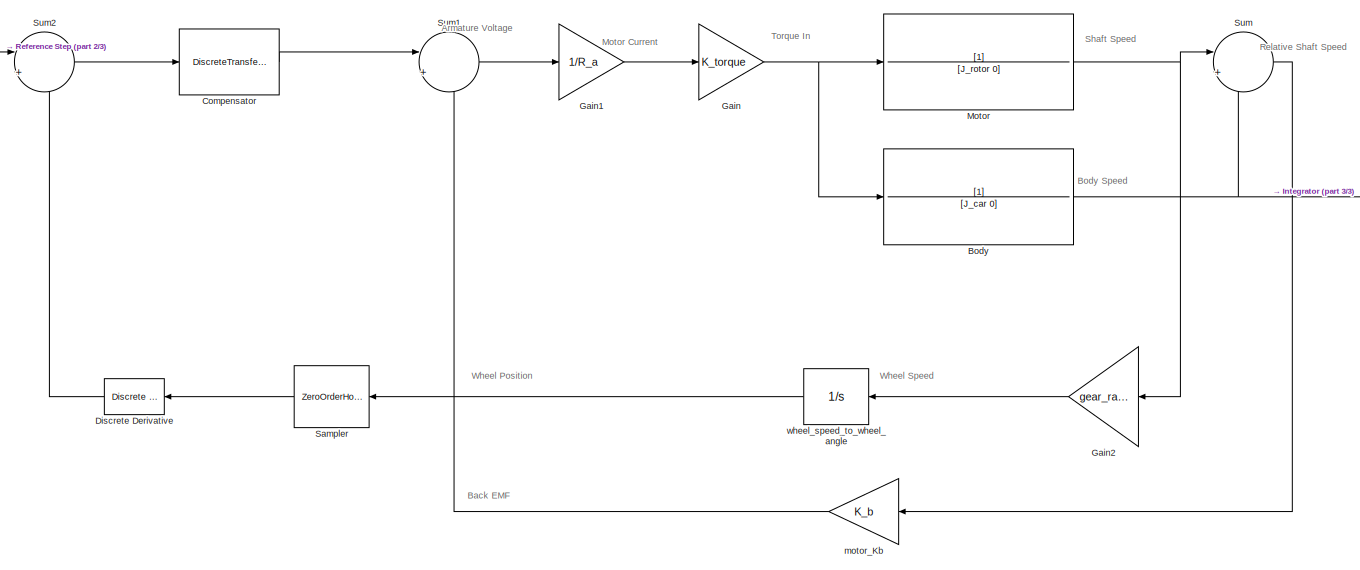
[diagram: root canvas - part 1/3, center side, full height]
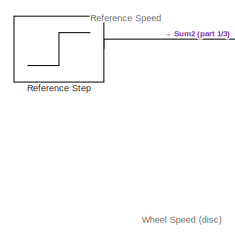
[diagram: root canvas - part 2/3, top left region]
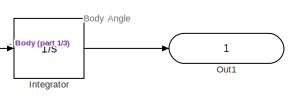
[diagram: root canvas - part 3/3, middle right region]
MODEL slx_ae9465cb43b9
KIND model
CONFIG AbsTol = auto
CONFIG EnableMultiTasking = off
CONFIG FixedStep = auto
CONFIG MaxStep = auto
CONFIG MinStep = auto
CONFIG RelTol = 1e-3
CONFIG SampleTimeConstraint = Unconstrained
CONFIG SolverName = VariableStepAuto
CONFIG StartTime = 0.0
CONFIG StopTime = 10.0
WORKSPACE source: mxarray member
WORKSPACE R_a = 0.0951
BLOCK [TransferFcn] Body
  Denominator = [J_car 0]
BLOCK [DiscreteTransferFcn] Compensator
  InputPortMap = u0
BLOCK [Reference] Discrete Derivative  REF=simulink/Discrete/Discrete Derivative
  SourceBlock = simulink/Discrete/Discrete Derivative
  SourceType = Discrete Derivative
BLOCK [Gain] Gain
  Gain = K_torque
BLOCK [Gain] Gain1
  Gain = 1/R_a
BLOCK [Gain] Gain2
  Gain = gear_ratio
BLOCK [Integrator] Integrator
BLOCK [TransferFcn] Motor
  Denominator = [J_rotor 0]
BLOCK [Outport] Out1
  IconDisplay = Signal name
  SignalName = Body Angle
BLOCK [Step] Reference Step
  SampleTime = 0
BLOCK [ZeroOrderHold] Sampler
  SampleTime = -1
BLOCK [Sum] Sum
  Inputs = |+-
BLOCK [Sum] Sum1
  Inputs = |+-
BLOCK [Sum] Sum2
  Inputs = |+-
BLOCK [Gain] motor_Kb
  Gain = K_b
BLOCK [Integrator] wheel_speed_to_wheel_angle
ANNOTATION (root): Shaft Speed
ANNOTATION (root): Armature Voltage
ANNOTATION (root): Back EMF
ANNOTATION (root): Body Angle
ANNOTATION (root): Body Speed
ANNOTATION (root): Motor Current
ANNOTATION (root): Reference Speed
ANNOTATION (root): Relative Shaft Speed
ANNOTATION (root): Torque In
ANNOTATION (root): Wheel Position
ANNOTATION (root): Wheel Speed
ANNOTATION (root): Wheel Speed (disc)
NET Body:1 -> Integrator:1, Sum:2
LINE Compensator:1 -> Sum1:1
LINE Discrete Derivative:1 -> Sum2:2
LINE Gain1:1 -> Gain:1
LINE Gain2:1 -> wheel_speed_to_wheel_angle:1
NET Gain:1 -> Body:1, Motor:1
LINE Integrator:1 -> Out1:1
NET Motor:1 -> Gain2:1, Sum:1
LINE Reference Step:1 -> Sum2:1
LINE Sampler:1 -> Discrete Derivative:1
LINE Sum1:1 -> Gain1:1
LINE Sum2:1 -> Compensator:1
LINE Sum:1 -> motor_Kb:1
LINE motor_Kb:1 -> Sum1:2
LINE wheel_speed_to_wheel_angle:1 -> Sampler:1
note: NET lines group one-source signal fan-out (src -> all destinations, sorted); 1:1 wires keep LINE
